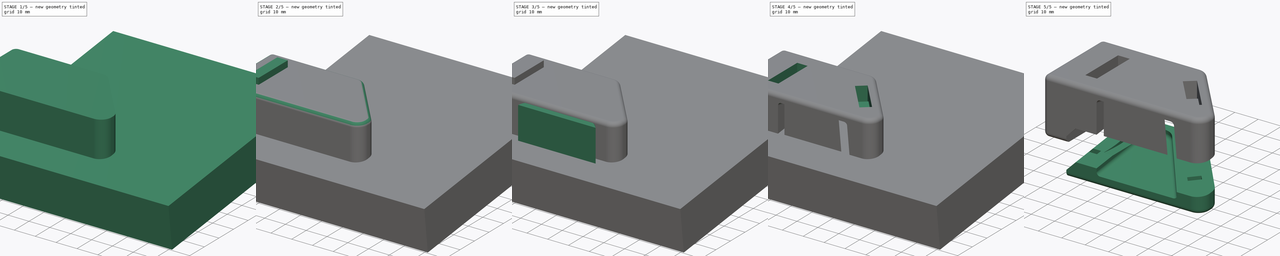
[diagram: build sequence overview — one tinted view per stage of 5, left to right]
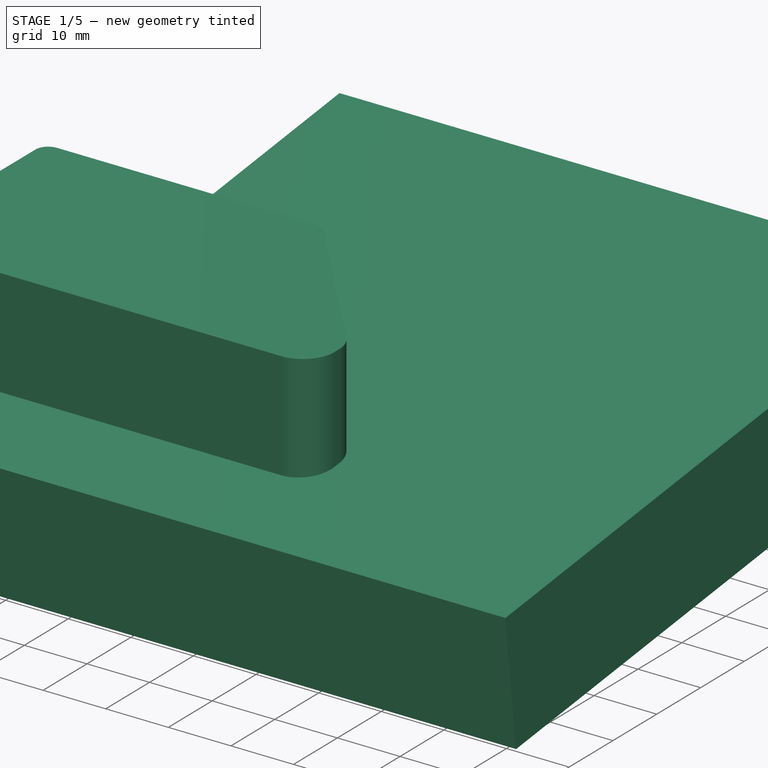
[diagram: stage 1 of 5 — iso view after this stage's code; geometry added in this stage tinted green]
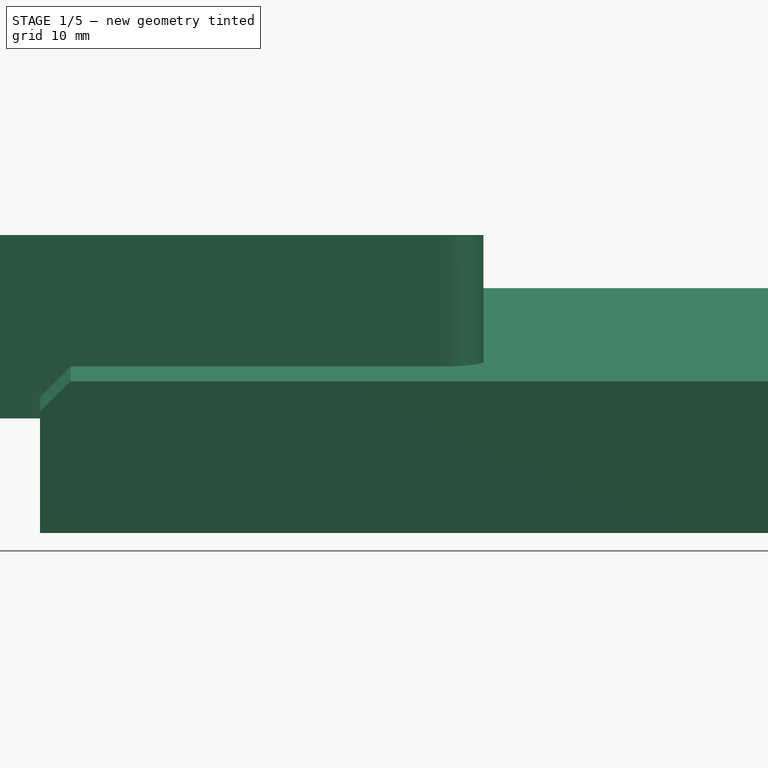
[diagram: stage 1 of 5 — front view after this stage's code; geometry added in this stage tinted green]
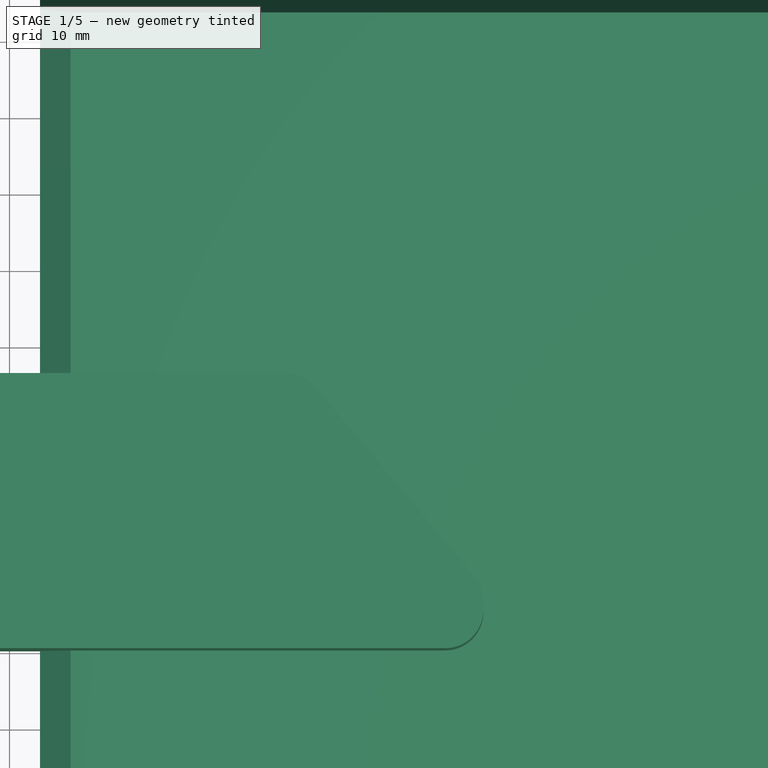
[diagram: stage 1 of 5 — top view after this stage's code; geometry added in this stage tinted green]
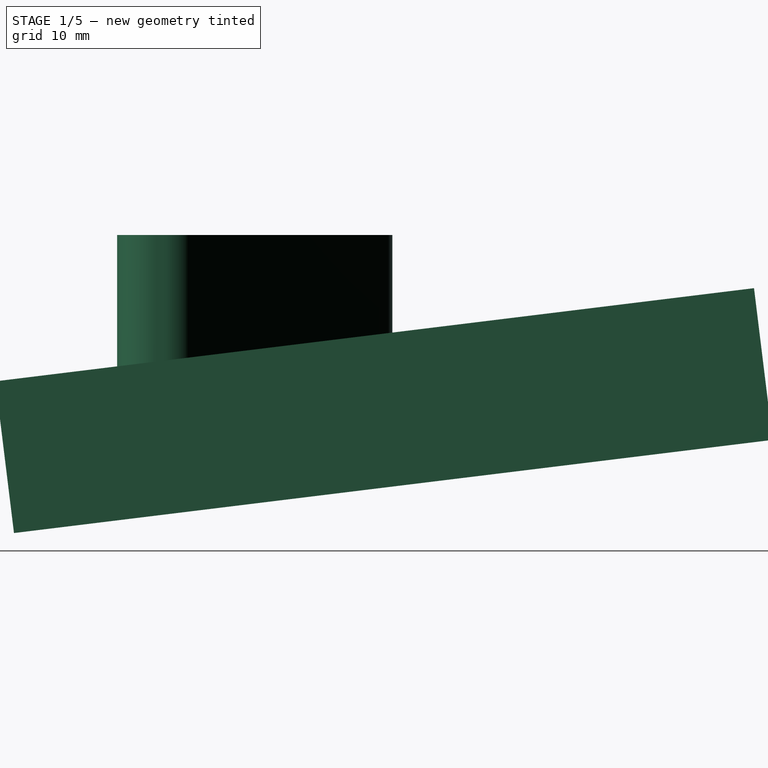
[diagram: stage 1 of 5 — right view after this stage's code; geometry added in this stage tinted green]
FCSTD DOCUMENT  (FreeCAD 0.21R30193 (Git))
Label: Siggi_break
License: All rights reserved
LicenseURL: http://en.wikipedia.org/wiki/All_rights_reserved
objects: Sketcher::SketchObject×5, PartDesign::Body×5, PartDesign::Pad×4, Part::FeaturePython×3, PartDesign::Fillet×2, PartDesign::FeatureBase×2, PartDesign::Thickness×1, PartDesign::Pocket×1, Part::MultiFuse×1, Part::Cut×1, Part::Box×1, Part::Chamfer×1, App::DocumentObjectGroup×1
note: 35 computed .brp shape members not serialized (recipe doc carries the construction recipe); baked Part::Feature solids carry a one-line shape summary decoded from their .brp

FEATURE [PartDesign::Body] Body  label="Siggi-Bremse"
  Group = -> [Sketch,Pad,Thickness,Sketch001,Pocket,Fillet,Sketch002,Pad001]
  Origin = -> Origin
  Tip = -> Pad001
FEATURE [Sketcher::SketchObject] Sketch003
  FullyConstrained = true
  MapMode = 5
  Support = -> [XY_Plane001]
  sketch-geometry (15):
    g0: LineSegment StartX=-26 StartY=2 StartZ=0 EndX=-26 EndY=34 EndZ=0
    g1: LineSegment StartX=-24 StartY=36 StartZ=0 EndX=16.1737 EndY=36 EndZ=0
    g2: LineSegment StartX=20.0039 StartY=34.2139 StartZ=0 EndX=40.8302 EndY=9.39409 EndZ=0
    g3: LineSegment StartX=42 StartY=6.18015 StartZ=0 EndX=42 EndY=5 EndZ=0
    g4: LineSegment StartX=37 StartY=0 StartZ=0 EndX=-24 EndY=0 EndZ=0
    g5: ArcOfCircle CenterX=-24 CenterY=34 CenterZ=0 NormalX=0 NormalY=0 NormalZ=1 AngleXU=0 Radius=2 StartAngle=1.5708 EndAngle=3.14159
    g6: GeomPoint X=-26 Y=36 Z=0
    g7: ArcOfCircle CenterX=-24 CenterY=2 CenterZ=0 NormalX=0 NormalY=0 NormalZ=1 AngleXU=0 Radius=2 StartAngle=3.14159 EndAngle=4.71239
    g8: GeomPoint X=-26 Y=0 Z=0
    g9: ArcOfCircle CenterX=37 CenterY=5 CenterZ=0 NormalX=0 NormalY=0 NormalZ=1 AngleXU=0 Radius=5 StartAngle=4.71239 EndAngle=6.28319
    g10: GeomPoint X=42 Y=0 Z=0
    g11: ArcOfCircle CenterX=37 CenterY=6.18015 CenterZ=0 NormalX=0 NormalY=0 NormalZ=1 AngleXU=0 Radius=5 StartAngle=0 EndAngle=0.698132
    g12: GeomPoint X=42 Y=8 Z=0
    g13: ArcOfCircle CenterX=16.1737 CenterY=31 CenterZ=0 NormalX=0 NormalY=0 NormalZ=1 AngleXU=0 Radius=5 StartAngle=0.698132 EndAngle=1.5708
    g14: GeomPoint X=18.5052 Y=36 Z=0
  constraints (35):
    c: PointOnObject(g8,g-1)
    c: Vertical(g0)
    c: Horizontal(g1)
    c: PointOnObject(g10,g-1)
    c: Vertical(g3)
    c: PointOnObject(g6,g0)
    c: PointOnObject(g6,g1)
    c: Tangent(g0,g5) = 1.5708
    c: Tangent(g1,g5) = 1.5708
    c: PointOnObject(g8,g0)
    c: PointOnObject(g8,g4)
    c: Tangent(g0,g7) = 1.5708
    c: Tangent(g4,g7) = 1.5708
    c: PointOnObject(g10,g3)
    c: PointOnObject(g10,g4)
    c: Tangent(g3,g9) = 1.5708
    c: Tangent(g4,g9) = 1.5708
    c: PointOnObject(g12,g2)
    c: PointOnObject(g12,g3)
    c: Tangent(g2,g11) = 1.5708
    c: Tangent(g3,g11) = 1.5708
    c: PointOnObject(g14,g1)
    c: PointOnObject(g14,g2)
    c: Tangent(g1,g13) = 1.5708
    c: Tangent(g2,g13) = 1.5708
    c: Equal(g9,g11)
    c: Angle(g-2,g2) = 0.698132
    c: DistanceY(g6) = 36
    c: DistanceX(g8) = -26
    c: DistanceX(g10) = 42
    c: DistanceY(g12) = 8
    c: Radius(g5) = 2
    c: Equal(g7,g5)
    c: Equal(g13,g9)
    c: Radius(g9) = 5
FEATURE [PartDesign::Pad] Pad002
  Direction = (0,0,1)
  Length = 16
  Length2 = 8
  Profile = -> Sketch003
  ReferenceAxis = -> Sketch003 [N_Axis]
  Type = 4
FEATURE [Part::Box] Box  label="Cube"
  AttacherType = Attacher::AttachEngine3D
  Height = 20
  Length = 100
  Placement = pos=(-16,-13.5,-23) rot=(1,0,0;0.122173rad)
  Width = 100
FEATURE [Part::Chamfer] Chamfer
  Base = -> Box
  Edges = 1 edges r=4: [Edge2]
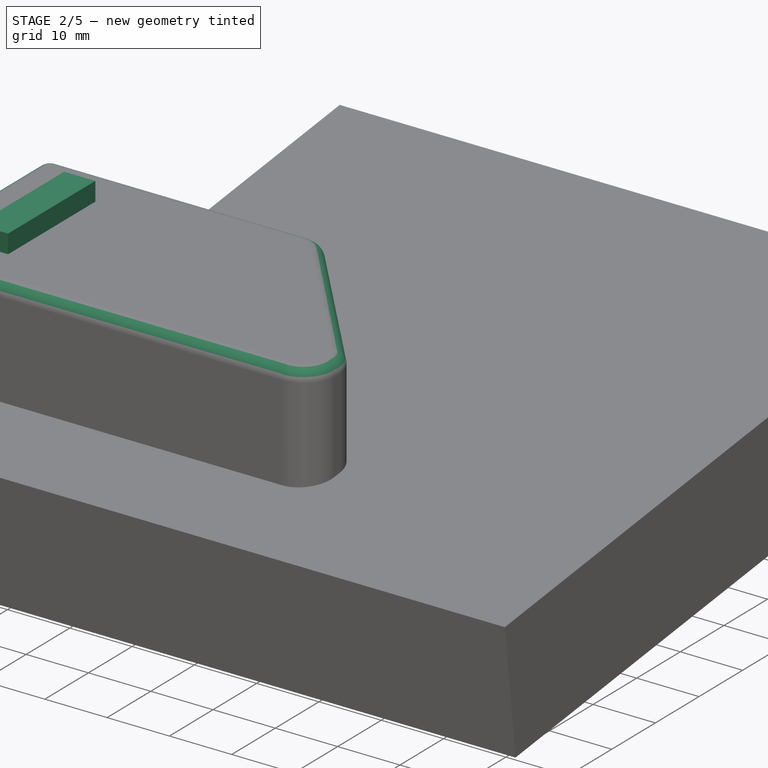
[diagram: stage 2 of 5 — iso view after this stage's code; geometry added in this stage tinted green]
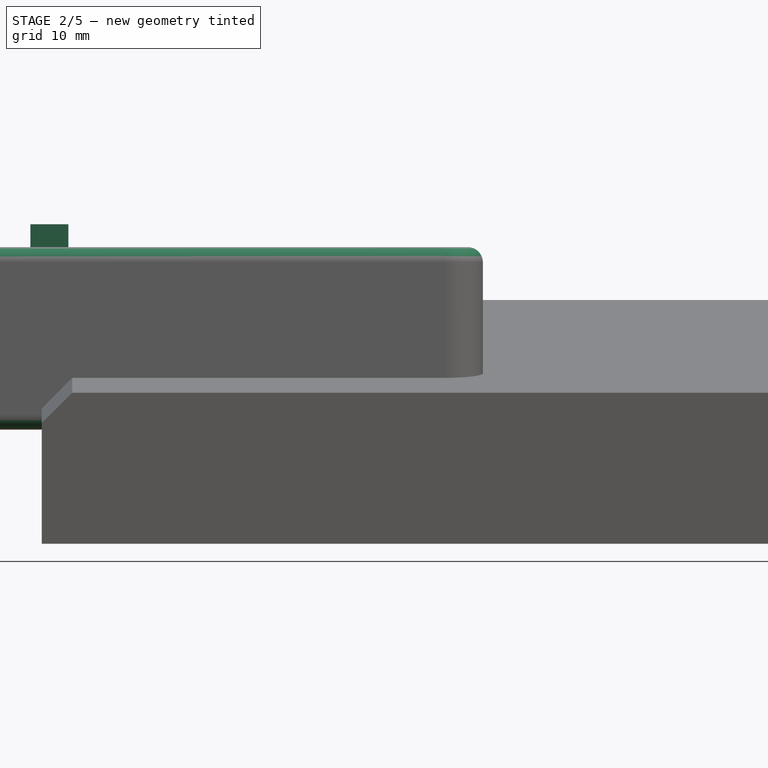
[diagram: stage 2 of 5 — front view after this stage's code; geometry added in this stage tinted green]
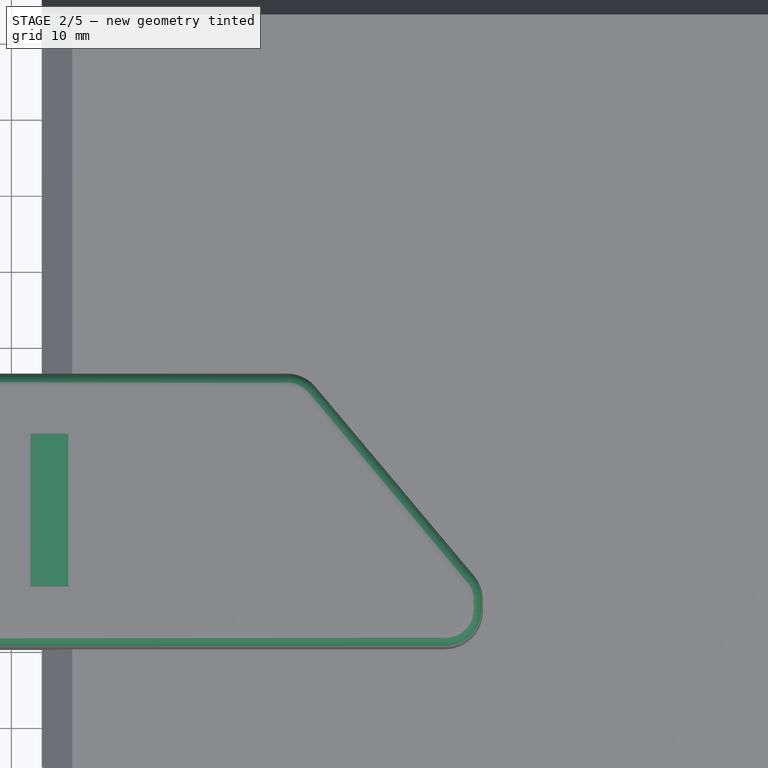
[diagram: stage 2 of 5 — top view after this stage's code; geometry added in this stage tinted green]
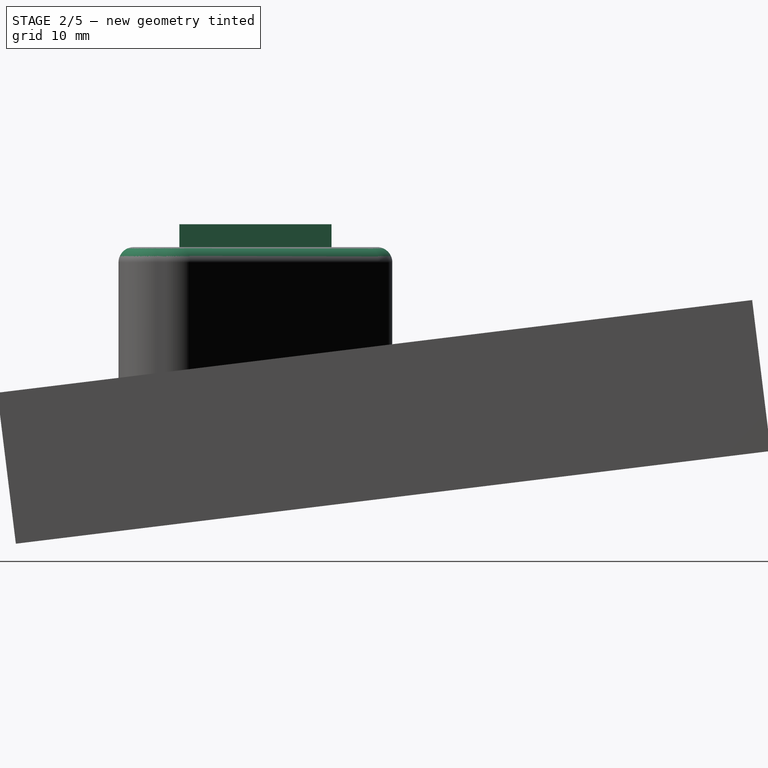
[diagram: stage 2 of 5 — right view after this stage's code; geometry added in this stage tinted green]
FEATURE [Sketcher::SketchObject] Sketch
  FullyConstrained = true
  MapMode = 5
  Support = -> [XY_Plane]
  sketch-geometry (6):
    g0: LineSegment StartX=0 StartY=28 StartZ=0 EndX=0 EndY=0 EndZ=0
    g1: LineSegment StartX=0 StartY=0 StartZ=0 EndX=28 EndY=0 EndZ=0
    g2: LineSegment StartX=28 StartY=0 StartZ=0 EndX=5.39034 EndY=29.8128 EndZ=0
    g3: ArcOfCircle CenterX=3 CenterY=28 CenterZ=0 NormalX=0 NormalY=0 NormalZ=1 AngleXU=0 Radius=3 StartAngle=0.648848 EndAngle=3.14159
    g4: GeomPoint X=0 Y=36.9204 Z=0
    g5: GeomPoint X=3 Y=31 Z=0
  constraints (14):
    c: PointOnObject(g4,g-2)
    c: Coincident(g0,g-1)
    c: Coincident(g0,g1)
    c: PointOnObject(g1,g-1)
    c: Coincident(g1,g2)
    c: PointOnObject(g4,g0)
    c: PointOnObject(g4,g2)
    c: Tangent(g0,g3) = -1.5708
    c: Tangent(g2,g3) = -1.5708
    c: DistanceX(g1,g1) = 28
    c: Radius(g3) = 3
    c: PointOnObject(g5,g3)
    c: Vertical(g5,g3)
    c: DistanceY(g5) = 31
FEATURE [PartDesign::Pad] Pad
  Direction = (0,0,1)
  Length = 14
  Length2 = 10
  Profile = -> Sketch
  ReferenceAxis = -> Sketch [N_Axis]
  Type = 0
FEATURE [PartDesign::Body] Body002
  Group = -> [Clone]
  Origin = -> Origin002
  Placement = pos=(0,-1,-1) rot=(1,0,0;0.122173rad)
  Tip = -> Clone
FEATURE [Sketcher::SketchObject] Sketch004
  FullyConstrained = true
  MapMode = 5
  Placement = pos=(0,0,0) rot=(0.57735,0.57735,0.57735;2.0944rad)
  Support = -> [YZ_Plane003]
  sketch-geometry (20):
    g0: LineSegment StartX=8 StartY=19 StartZ=0 EndX=28 EndY=19 EndZ=0
    g1: LineSegment StartX=28 StartY=19 StartZ=0 EndX=28 EndY=-2 EndZ=0
    g2: LineSegment StartX=24 StartY=-6 StartZ=0 EndX=12 EndY=-6 EndZ=0
    g3: LineSegment StartX=8 StartY=-2 StartZ=0 EndX=8 EndY=19 EndZ=0
    g4: ArcOfCircle CenterX=24 CenterY=-2 CenterZ=0 NormalX=0 NormalY=0 NormalZ=1 AngleXU=0 Radius=4 StartAngle=4.71239 EndAngle=6.28319
    g5: GeomPoint X=28 Y=-6 Z=0
    g6: ArcOfCircle CenterX=12 CenterY=-2 CenterZ=0 NormalX=0 NormalY=0 NormalZ=1 AngleXU=0 Radius=4 StartAngle=3.14159 EndAngle=4.71239
    g7: GeomPoint X=8 Y=-6 Z=0
    g8: LineSegment StartX=12.5 StartY=11 StartZ=0 EndX=23.5 EndY=11 EndZ=0
    g9: LineSegment StartX=25.5 StartY=9 StartZ=0 EndX=25.5 EndY=-1.5 EndZ=0
    g10: LineSegment StartX=23.5 StartY=-3.5 StartZ=0 EndX=12.5 EndY=-3.5 EndZ=0
    g11: LineSegment StartX=10.5 StartY=-1.5 StartZ=0 EndX=10.5 EndY=9 EndZ=0
    g12: ArcOfCircle CenterX=23.5 CenterY=9 CenterZ=0 NormalX=0 NormalY=0 NormalZ=1 AngleXU=0 Radius=2 StartAngle=0 EndAngle=1.5708
    g13: GeomPoint X=25.5 Y=11 Z=0
    g14: ArcOfCircle CenterX=12.5 CenterY=9 CenterZ=0 NormalX=0 NormalY=0 NormalZ=1 AngleXU=0 Radius=2 StartAngle=1.5708 EndAngle=3.14159
    g15: GeomPoint X=10.5 Y=11 Z=0
    g16: ArcOfCircle CenterX=12.5 CenterY=-1.5 CenterZ=0 NormalX=0 NormalY=0 NormalZ=1 AngleXU=0 Radius=2 StartAngle=3.14159 EndAngle=4.71239
    g17: GeomPoint X=10.5 Y=-3.5 Z=0
    g18: ArcOfCircle CenterX=23.5 CenterY=-1.5 CenterZ=0 NormalX=0 NormalY=0 NormalZ=1 AngleXU=0 Radius=2 StartAngle=4.71239 EndAngle=6.28319
    g19: GeomPoint X=25.5 Y=-3.5 Z=0
  constraints (48):
    c: Coincident(g0,g1)
    c: Coincident(g3,g0)
    c: Horizontal(g0)
    c: Horizontal(g2)
    c: Vertical(g1)
    c: Vertical(g3)
    c: DistanceX(g0,g0) = 20
    c: DistanceY(g7) = -6
    c: DistanceY(g5,g1) = 25
    c: DistanceX(g7) = 8
    c: PointOnObject(g5,g1)
    c: PointOnObject(g5,g2)
    c: Tangent(g1,g4) = 1.5708
    c: Tangent(g2,g4) = 1.5708
    c: PointOnObject(g7,g2)
    c: PointOnObject(g7,g3)
    c: Tangent(g2,g6) = 1.5708
    c: Tangent(g3,g6) = 1.5708
    c: Equal(g6,g4)
    c: Radius(g4) = 4
    c: Horizontal(g8)
    c: Horizontal(g10)
    c: Vertical(g9)
    c: Vertical(g11)
    c: DistanceX(g0,g15) = 2.5
    c: DistanceX(g13,g0) = 2.5
    c: DistanceY(g7,g17) = 2.5
    c: DistanceY(g15) = 11
    c: PointOnObject(g13,g8)
    c: PointOnObject(g13,g9)
    c: Tangent(g8,g12) = 1.5708
    c: Tangent(g9,g12) = 1.5708
    c: PointOnObject(g15,g8)
    c: PointOnObject(g15,g11)
    c: Tangent(g8,g14) = 1.5708
    c: Tangent(g11,g14) = 1.5708
    c: PointOnObject(g17,g10)
    c: PointOnObject(g17,g11)
    c: Tangent(g10,g16) = 1.5708
    c: Tangent(g11,g16) = 1.5708
    c: PointOnObject(g19,g9)
    c: PointOnObject(g19,g10)
    c: Tangent(g9,g18) = 1.5708
    c: Tangent(g10,g18) = 1.5708
    c: Equal(g18,g12)
    c: Equal(g12,g14)
    c: Equal(g14,g16)
    c: Radius(g18) = 2
FEATURE [PartDesign::Pad] Pad003
  Direction = (1,-2e-16,3e-16)
  Length = 5
  Length2 = 10
  Placement = pos=(0,0,0) rot=(0.57735,0.57735,0.57735;2.0944rad)
  Profile = -> Sketch004
  ReferenceAxis = -> Sketch004 [N_Axis]
  Type = 0
FEATURE [PartDesign::Body] Body003  label="zip-tie-cut-out"
  Group = -> [Sketch004,Pad003]
  Origin = -> Origin003
  Placement = pos=(-13.5,0,0) rot=(0,0,1;0rad)
  Tip = -> Pad003
FEATURE [PartDesign::FeatureBase] Clone001
  BaseFeature = -> Body003
  Placement = pos=(-17.5,0,0) rot=(0,0,1;0rad)
FEATURE [PartDesign::Fillet] Fillet001
  Base = -> Pad002 [Face11,Face12]
  BaseFeature = -> Pad002
  Radius = 2
  SupportTransform = false
  UseAllEdges = false
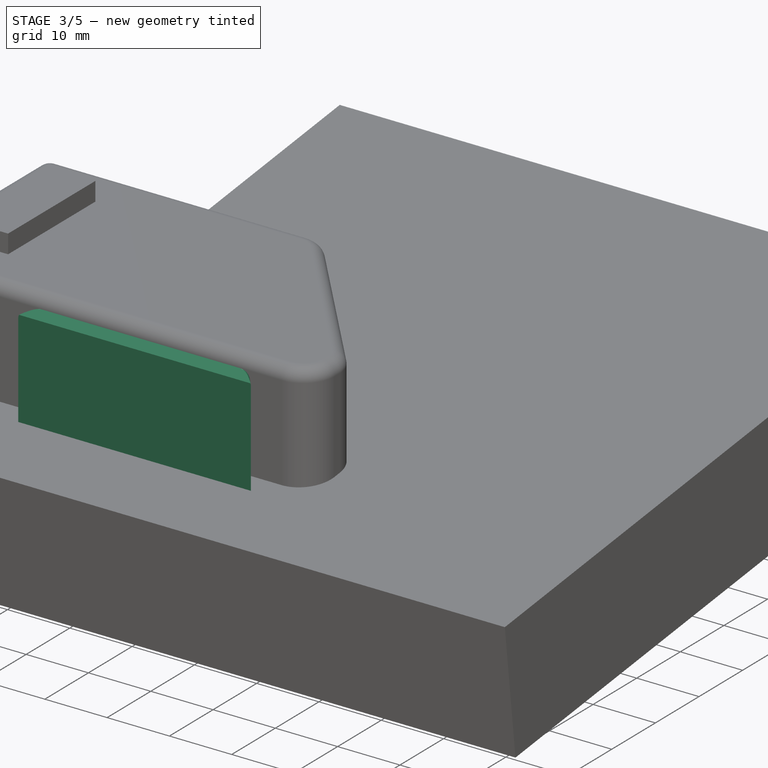
[diagram: stage 3 of 5 — iso view after this stage's code; geometry added in this stage tinted green]
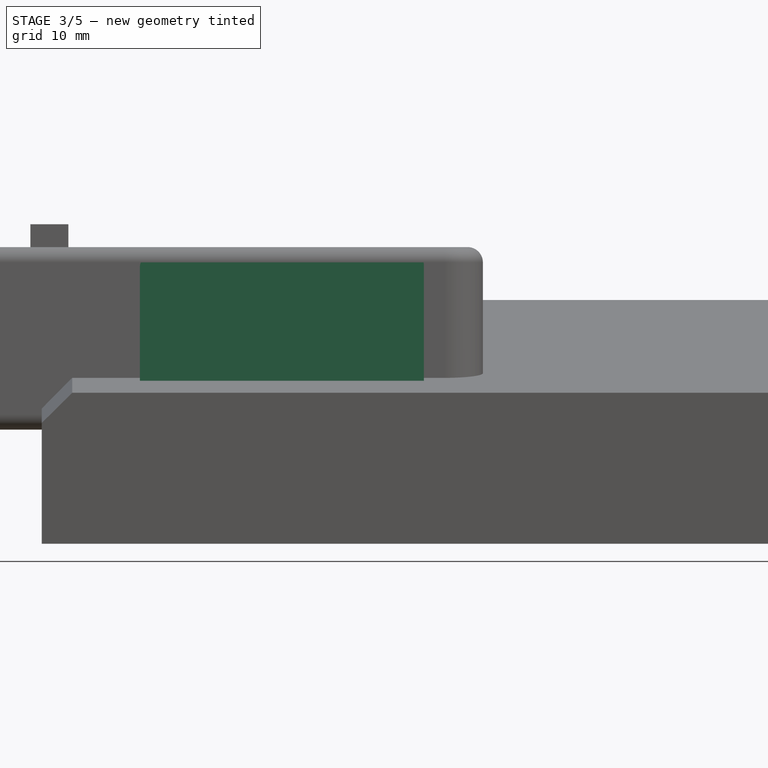
[diagram: stage 3 of 5 — front view after this stage's code; geometry added in this stage tinted green]
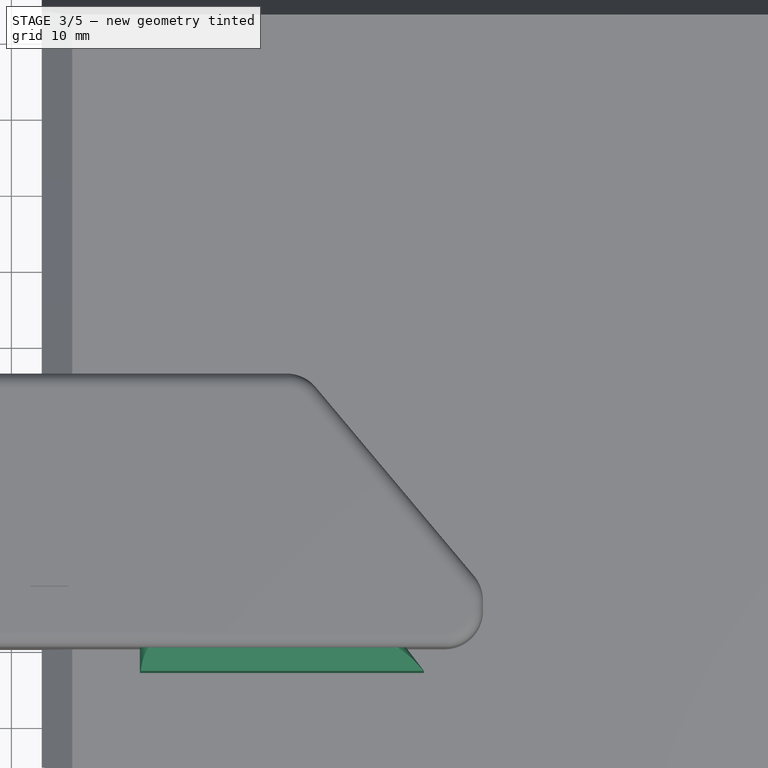
[diagram: stage 3 of 5 — top view after this stage's code; geometry added in this stage tinted green]
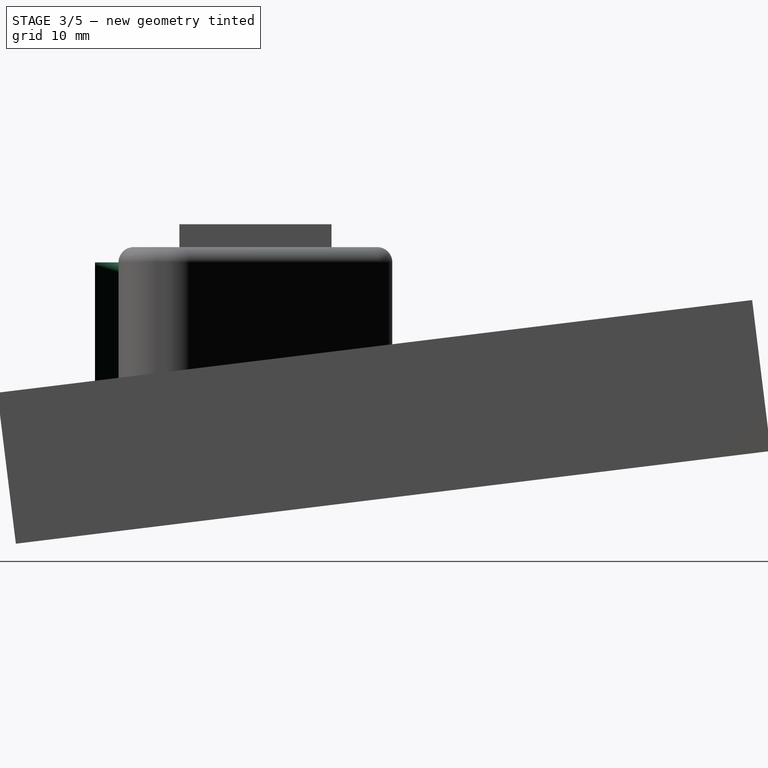
[diagram: stage 3 of 5 — right view after this stage's code; geometry added in this stage tinted green]
FEATURE [PartDesign::Thickness] Thickness
  Base = -> Pad [Face6]
  BaseFeature = -> Pad
  Intersection = false
  Join = 1
  Mode = 0
  SupportTransform = false
  Value = 3.1
FEATURE [Sketcher::SketchObject] Sketch001
  FullyConstrained = false
  MapMode = 5
  Placement = pos=(0,0,0) rot=(0.57735,0.57735,0.57735;2.0944rad)
  Support = -> [YZ_Plane]
  sketch-geometry (4):
    g0: LineSegment StartX=0 StartY=14 StartZ=0 EndX=34.2 EndY=3.5 EndZ=0
    g1: LineSegment StartX=34.2 StartY=3.5 StartZ=0 EndX=34.2 EndY=20.1144 EndZ=0
    g2: LineSegment StartX=34.2 StartY=20.1144 StartZ=0 EndX=0 EndY=20.1144 EndZ=0
    g3: LineSegment StartX=0 StartY=20.1144 StartZ=0 EndX=0 EndY=14 EndZ=0
  constraints (11):
    c: Coincident(g0,g1)
    c: Vertical(g1)
    c: Coincident(g1,g2)
    c: Horizontal(g2)
    c: Coincident(g2,g3)
    c: PointOnObject(g3,g-2)
    c: Vertical(g3)
    c: DistanceY(g3) = 14
    c: DistanceY(g0) = 3.5
    c: DistanceX(g0) = 34.2
    c: Coincident(g0,g3)
FEATURE [PartDesign::Pocket] Pocket
  BaseFeature = -> Thickness
  Direction = (-1,2e-16,-3e-16)
  Length = 5
  Length2 = 5
  Midplane = true
  Profile = -> Sketch001
  ReferenceAxis = -> Sketch001 [N_Axis]
  Type = 1
FEATURE [PartDesign::Fillet] Fillet
  Base = -> Pocket [Edge14,Edge25]
  BaseFeature = -> Pocket
  Radius = 1.5
  SupportTransform = false
  UseAllEdges = false
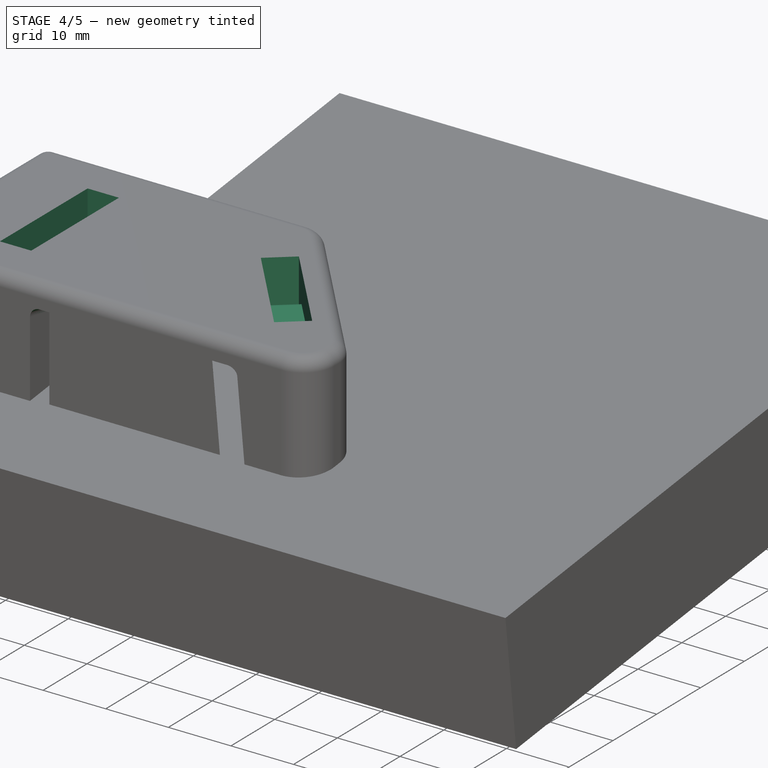
[diagram: stage 4 of 5 — iso view after this stage's code; geometry added in this stage tinted green]
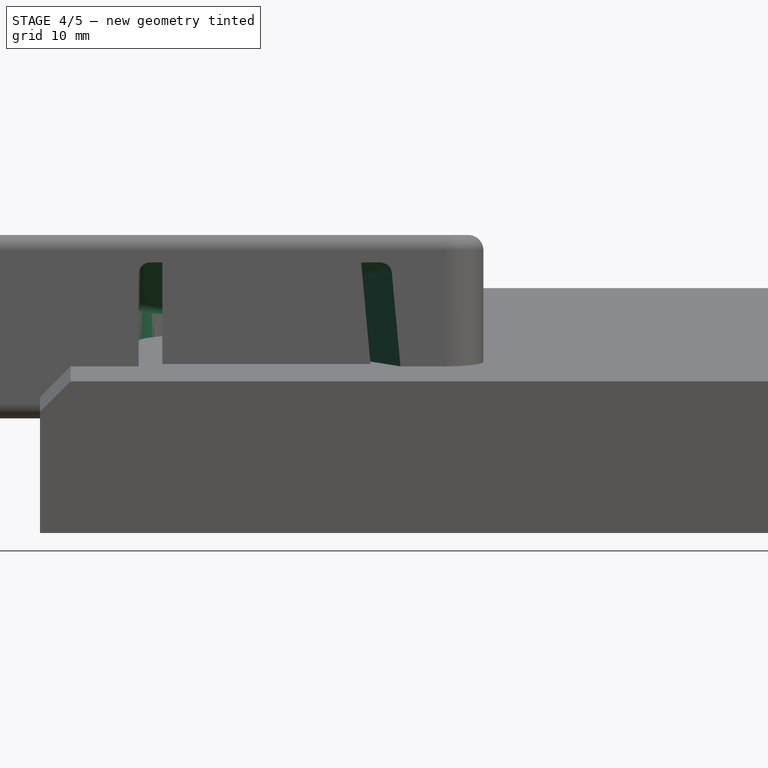
[diagram: stage 4 of 5 — front view after this stage's code; geometry added in this stage tinted green]
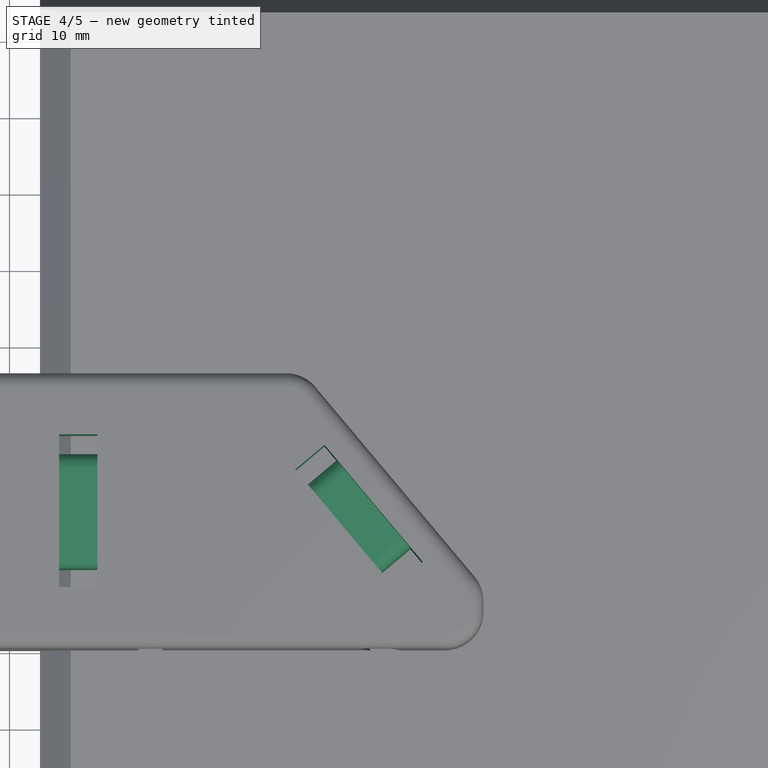
[diagram: stage 4 of 5 — top view after this stage's code; geometry added in this stage tinted green]
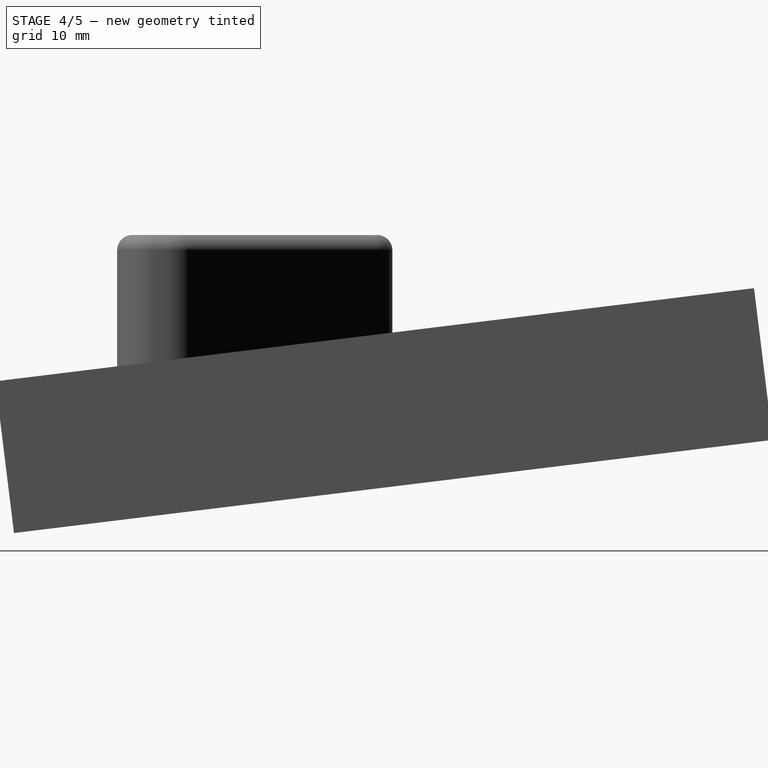
[diagram: stage 4 of 5 — right view after this stage's code; geometry added in this stage tinted green]
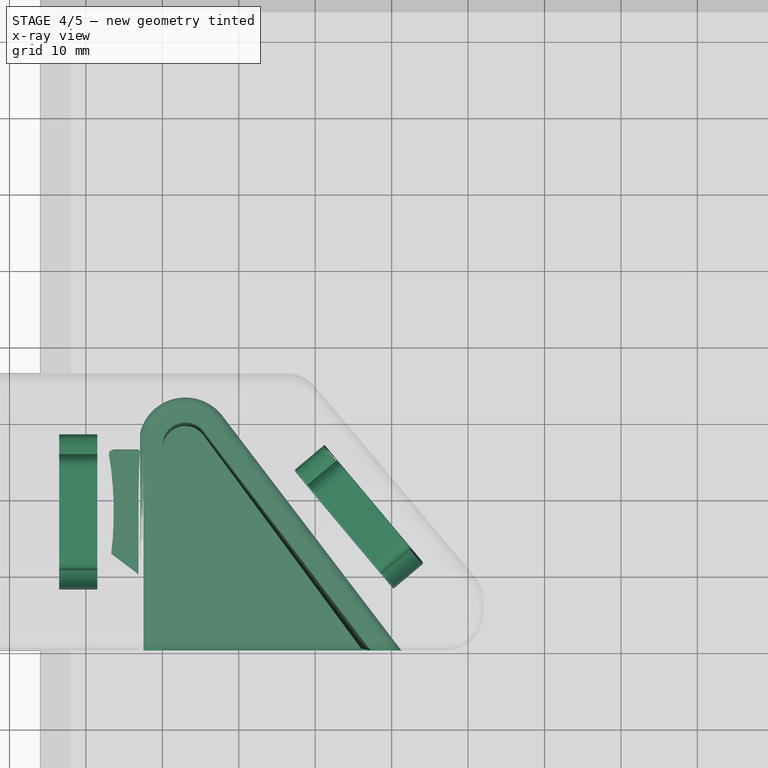
[diagram: stage 4 of 5 — x-ray composite at the top view; earlier geometry ghosted, this stage's added geometry solid]
FEATURE [Sketcher::SketchObject] Sketch002
  AttachmentOffset = pos=(0,0,1) rot=(1,0,0;-0.122173rad)
  FullyConstrained = false
  MapMode = 5
  Placement = pos=(0,0,1) rot=(1,0,0;6.16101rad)
  Support = -> [XY_Plane]
  sketch-geometry (7):
    g0: LineSegment StartX=-1 StartY=11 StartZ=0 EndX=-6.50712 EndY=11 EndZ=0
    g1: ArcOfCircle CenterX=-6.50712 CenterY=11.5 CenterZ=0 NormalX=0 NormalY=0 NormalZ=1 AngleXU=0 Radius=0.5 StartAngle=2.97266 EndAngle=4.71239
    g2: ArcOfCircle CenterX=-51.3594 CenterY=19.15 CenterZ=0 NormalX=0 NormalY=0 NormalZ=1 AngleXU=0 Radius=45 StartAngle=6.11425 EndAngle=6.45212
    g3: ArcOfCircle CenterX=-6.50712 CenterY=26.8 CenterZ=0 NormalX=0 NormalY=0 NormalZ=1 AngleXU=0 Radius=0.5 StartAngle=1.5708 EndAngle=3.31053
    g4: LineSegment StartX=-6.50712 StartY=27.3 StartZ=0 EndX=-1 EndY=27.3 EndZ=0
    g5: LineSegment StartX=-1 StartY=27.3 StartZ=0 EndX=-1 EndY=11 EndZ=0
    g6: GeomPoint X=-6.35947 Y=19.2299 Z=0
  constraints (19):
    c: Horizontal(g0)
    c: Tangent(g3,g4) = 1.5708
    c: Coincident(g4,g5)
    c: Coincident(g5,g0)
    c: Vertical(g5)
    c: Equal(g0,g4)
    c: Tangent(g1,g0) = 1.5708
    c: Tangent(g3,g2) = 1.5708
    c: Tangent(g2,g1) = 1.5708
    c: Equal(g1,g3)
    c: Radius(g1) = 0.5
    c: Radius(g2) = 45
    c: Horizontal(g4)
    c: DistanceY(g0) = 11
    c: DistanceX(g0) = -1
    c: DistanceY(g5,g5) = 16.3
    c: DistanceX(g1) = -7
    c: PointOnObject(g6,g2)
    c: DistanceX(g1,g6) = 0.640526
FEATURE [PartDesign::Pad] Pad001
  BaseFeature = -> Fillet
  Direction = (0,0.121869,0.992546)
  Length = 6.5
  Length2 = 10
  Profile = -> Sketch002
  ReferenceAxis = -> Sketch002 [N_Axis]
  Type = 0
FEATURE [PartDesign::FeatureBase] Clone
  BaseFeature = -> Body
FEATURE [PartDesign::Body] Body004  label="zip-tie-cut-out-2"
  Group = -> [Clone001]
  Origin = -> Origin004
  Placement = pos=(48.7842,13.199,0) rot=(0,0,1;0.698132rad)
  Tip = -> Clone001
FEATURE [Part::MultiFuse] Fusion
  Shapes = -> [Body002,Body003,Body004]
FEATURE [PartDesign::Body] Body001
  Group = -> [Sketch003,Pad002,Fillet001]
  Origin = -> Origin001
  Tip = -> Fillet001
FEATURE [Part::Cut] Cut
  Base = -> Body001
  Tool = -> Fusion
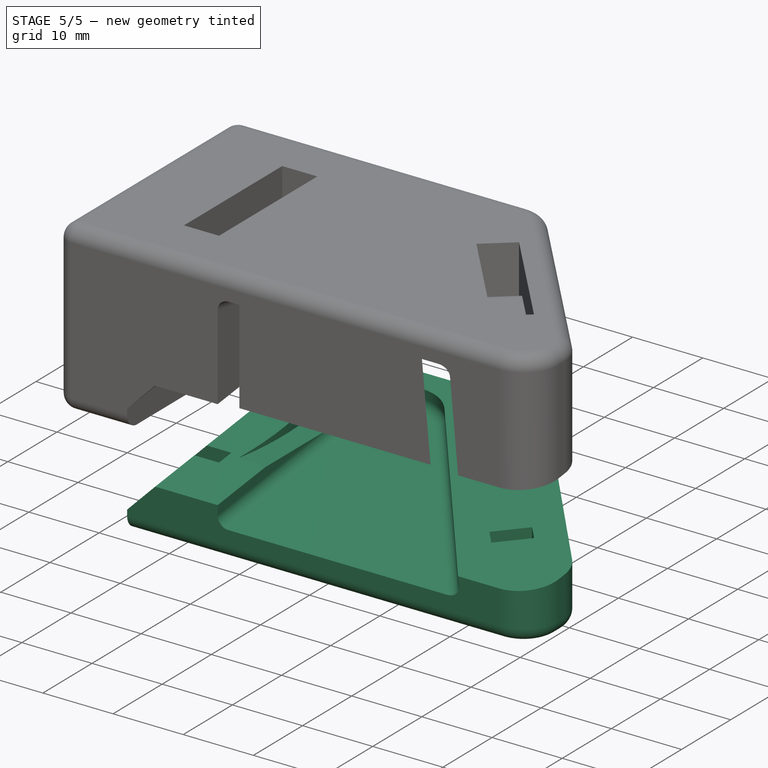
[diagram: stage 5 of 5 — iso view after this stage's code; geometry added in this stage tinted green]
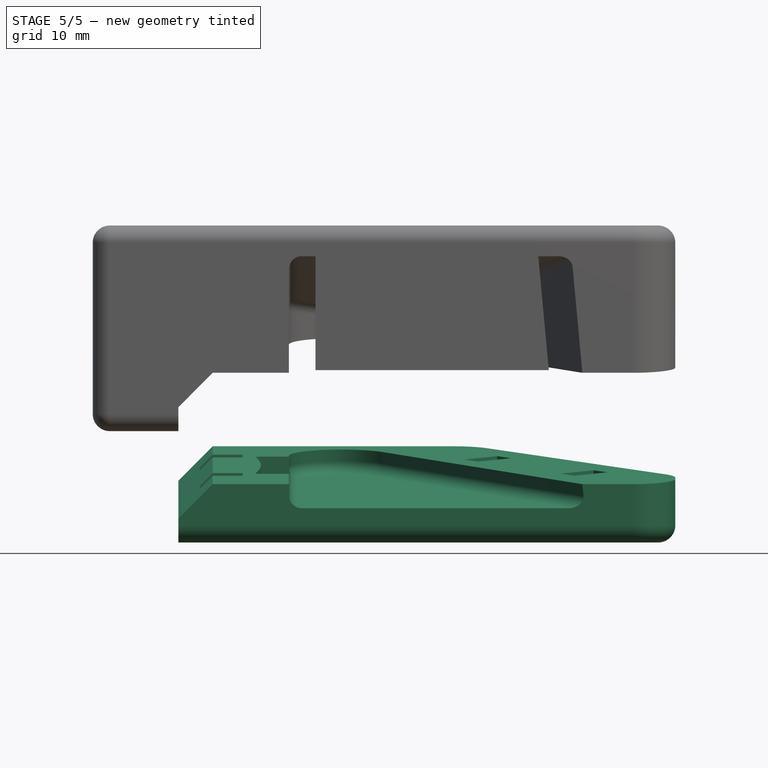
[diagram: stage 5 of 5 — front view after this stage's code; geometry added in this stage tinted green]
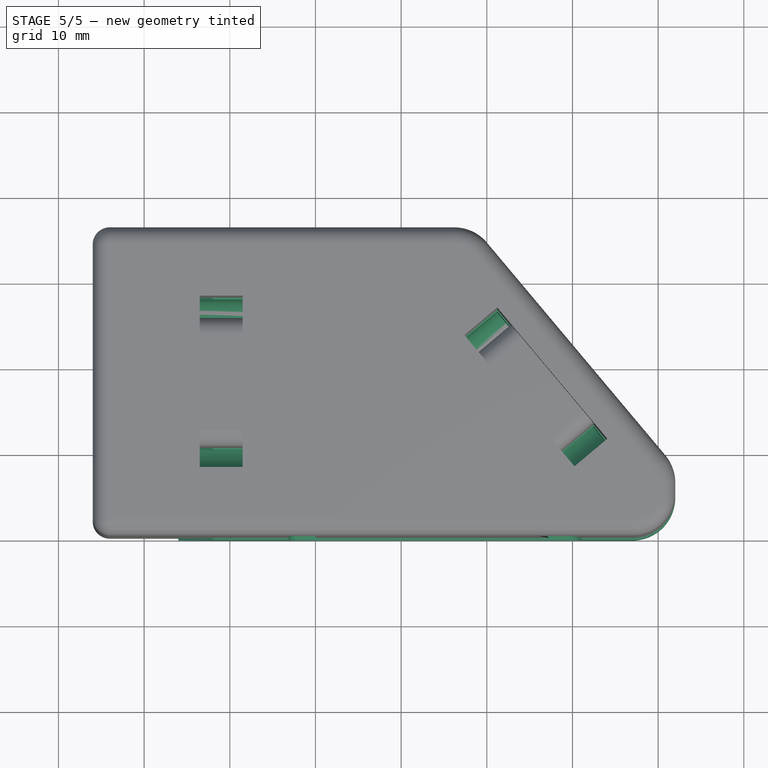
[diagram: stage 5 of 5 — top view after this stage's code; geometry added in this stage tinted green]
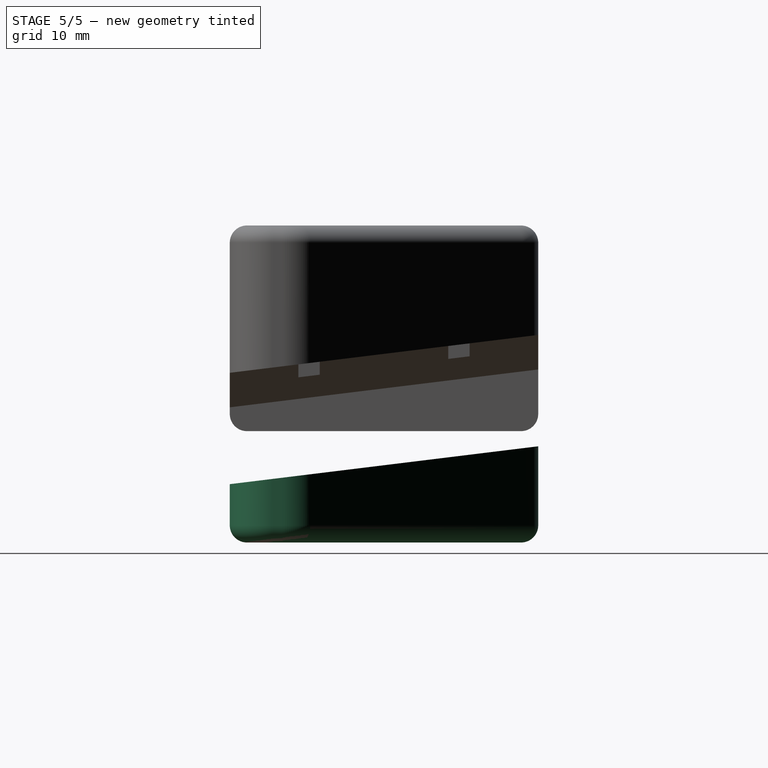
[diagram: stage 5 of 5 — right view after this stage's code; geometry added in this stage tinted green]
FEATURE [Part::FeaturePython] Slice  # WARN: FeaturePython — macro-defined, semantics opaque (R4)
  Base = -> Cut
  Mode = 1
  Tolerance = 0
  Tools = -> [Chamfer]
FEATURE [Part::FeaturePython] Slice_child0  label="Slice.0"  # WARN: FeaturePython — macro-defined, semantics opaque (R4)
  Base = -> Slice
  FilterType = 1
  Invert = false
  OverrideMaxVal = 0
  WindowFrom = 80
  WindowTo = 100
  items = 0
FEATURE [Part::FeaturePython] Slice_child1  label="Slice.1"  # WARN: FeaturePython — macro-defined, semantics opaque (R4)
  Base = -> Slice
  FilterType = 1
  Invert = false
  OverrideMaxVal = 0
  Placement = pos=(0,0,-13) rot=(0,0,1;0rad)
  WindowFrom = 80
  WindowTo = 100
  items = 1
FEATURE [App::DocumentObjectGroup] GrExplode_Slice  label="Exploded Slice"
  Group = -> [Slice_child0,Slice_child1]
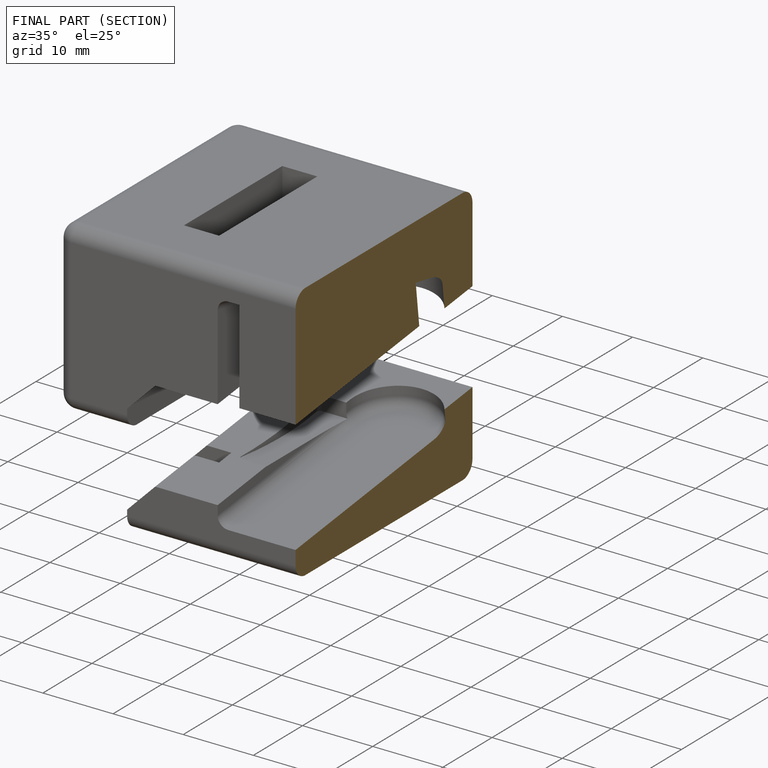
[diagram: finished part — half-section view (interior)]
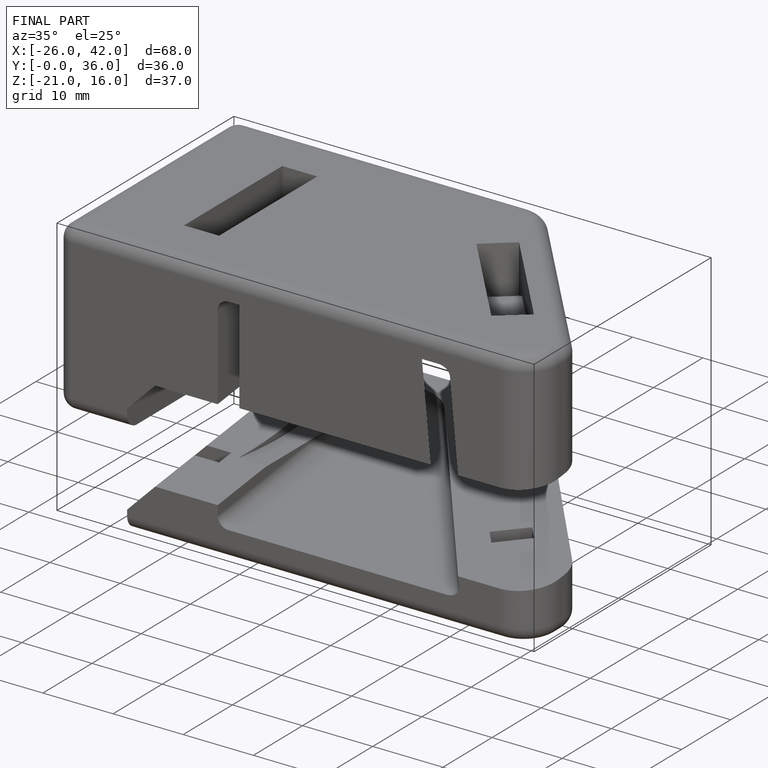
[diagram: finished part — iso view with bounding-box wireframe]
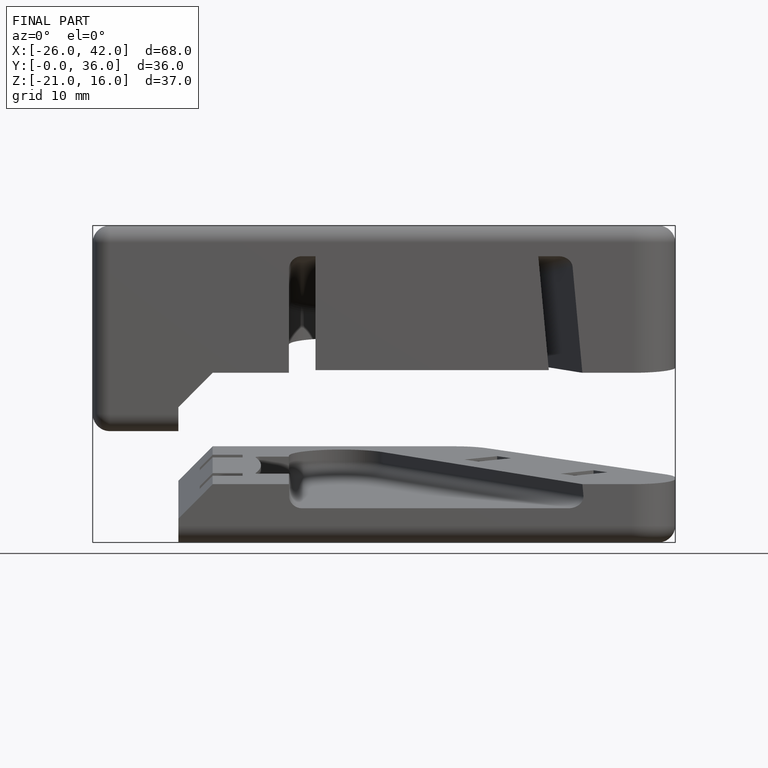
[diagram: finished part — front view with bounding-box wireframe]
